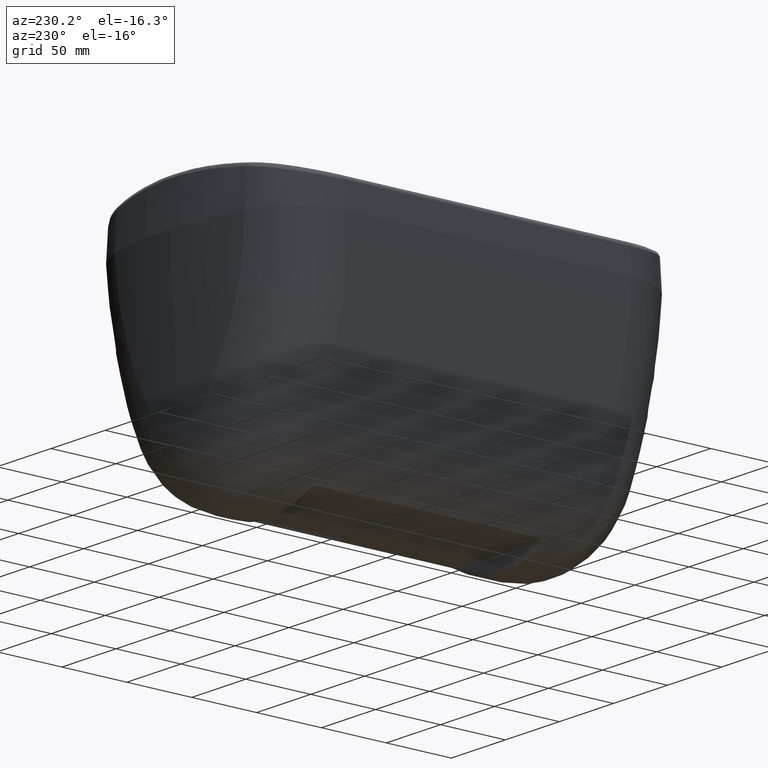
[diagram: clean part render]
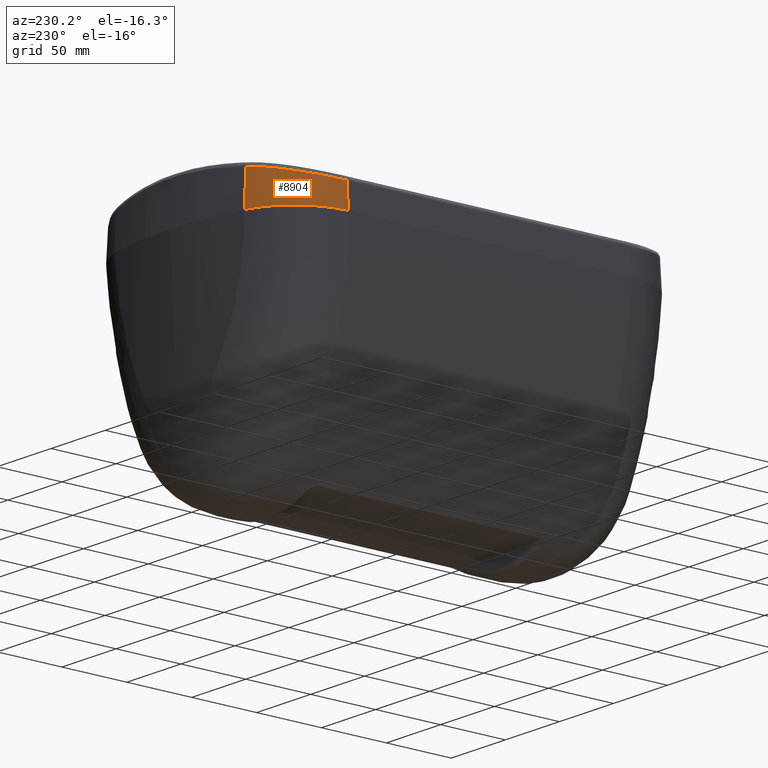
[diagram: same view with one face highlighted and labeled with its STEP entity id]
A machine part, auxiliary view. The second image highlights one B-rep face of the part: STEP entity #8904.
In plain terms, the highlighted face is a freeform B-spline surface patch.
Its self-contained STEP definition (entity closure, byte-faithful):
#150 = CARTESIAN_POINT ( 'NONE',  ( -89.42915485547334242, 188.9463159862830253, 244.0113554168672749 ) ) ;
#223 = CARTESIAN_POINT ( 'NONE',  ( -71.01446128728711926, 206.8780084878387697, 223.0525262965610693 ) ) ;
#228 = CARTESIAN_POINT ( 'NONE',  ( -97.01416530956042550, 160.9795617300341348, 262.8108464797822421 ) ) ;
#330 = CARTESIAN_POINT ( 'NONE',  ( -86.52059050671783780, 192.8427765798996631, 243.9999790924850629 ) ) ;
#404 = CARTESIAN_POINT ( 'NONE',  ( -97.70222834118391120, 172.1564719607957556, 231.9250262467824655 ) ) ;
#570 = CARTESIAN_POINT ( 'NONE',  ( -70.64292112816842462, 206.1385913899607090, 238.7500262084816427 ) ) ;
#751 = CARTESIAN_POINT ( 'NONE',  ( -59.88333336165470655, 210.5895129093997582, 223.0525262965696527 ) ) ;
#943 = CARTESIAN_POINT ( 'NONE',  ( -59.99458637661751226, 210.0829085645397072, 231.9250262467822665 ) ) ;
#1119 = CARTESIAN_POINT ( 'NONE',  ( -97.99999999996133226, 166.5554577454176979, 244.0000000000000568 ) ) ;
#1122 = CARTESIAN_POINT ( 'NONE',  ( -83.40658146635705350, 194.5730029376038317, 266.2452535455641964 ) ) ;
#1232 = CARTESIAN_POINT ( 'NONE',  ( -60.06147851544996286, 209.4141284594159913, 243.9999914605832601 ) ) ;
#1290 = CARTESIAN_POINT ( 'NONE',  ( -59.47479990955961426, 209.8431797915277173, 238.7500262084836891 ) ) ;
#1295 = CARTESIAN_POINT ( 'NONE',  ( -68.38032540615625976, 205.1032653363937754, 269.4207572415613186 ) ) ;
#1469 = CARTESIAN_POINT ( 'NONE',  ( -82.35868806640141315, 194.5828589501576857, 286.0000000000000568 ) ) ;
#1636 = CARTESIAN_POINT ( 'NONE',  ( -59.11785247331602022, 207.3804872477217316, 286.0000000000016485 ) ) ;
#1639 = CARTESIAN_POINT ( 'NONE',  ( -67.38660512634879751, 205.5341502738587280, 269.6081342088526753 ) ) ;
#1811 = CARTESIAN_POINT ( 'NONE',  ( -78.47857477891930955, 198.1246741513796792, 285.9999999999807869 ) ) ;
#1814 = CARTESIAN_POINT ( 'NONE',  ( -63.70857587892282936, 206.9140258078994634, 270.2689837598798590 ) ) ;
#2306 = CARTESIAN_POINT ( 'NONE',  ( -97.71339309995931899, 166.5090961603815742, 244.0184515980935203 ) ) ;
#2482 = CARTESIAN_POINT ( 'NONE',  ( -90.56697473282160615, 187.2164918557105011, 244.0209686430533793 ) ) ;
#3002 = CARTESIAN_POINT ( 'NONE',  ( -88.22743088416726209, 190.6422747847209394, 244.0021593803782594 ) ) ;
#3269 = CARTESIAN_POINT ( 'NONE',  ( -94.47631998579075230, 176.4194827398493999, 263.4922129618790905 ) ) ;
#3442 = CARTESIAN_POINT ( 'NONE',  ( -86.44514015586844380, 191.1106442802418144, 265.5242072069941059 ) ) ;
#3528 = B_SPLINE_CURVE_WITH_KNOTS ( 'NONE', 3,
 ( #21529, #34791, #24715, #2306, #32484, #18536, #29318, #19055, #16002, #29487, #32308, #4979, #7988, #32663, #27353, #5146, #2482, #150, #8356, #3002, #21887, #330, #13368, #34974, #5676, #10679, #18878, #27182, #19226, #26651, #24364, #29659, #24534, #30005, #5329, #16183, #8169, #22064 ),
 .UNSPECIFIED., .F., .F.,
 ( 4, 2, 2, 2, 2, 2, 2, 2, 2, 2, 2, 2, 2, 2, 2, 2, 2, 2, 4 ),
 ( 0.0000000000000000000, 0.004128769760202813909, 0.008257539520405627817, 0.01238630928060844086, 0.01445069416070985345, 0.01651507904081126604, 0.02064384880101402531, 0.02477261856121678110, 0.02890138832141954037, 0.03096577320152088530, 0.03303015808162223371, 0.03715892784182483338, 0.04128769760202743305, 0.04541646736223003272, 0.04954523712243263239, 0.05367400688263523206, 0.05780277664283783173, 0.06193154640304043834, 0.06606031616324303801 ),
 .UNSPECIFIED. ) ;
#3621 = CARTESIAN_POINT ( 'NONE',  ( -94.44824011767880734, 182.9979647497237352, 223.0525262965704769 ) ) ;
#3765 = EDGE_LOOP ( 'NONE', ( #25695, #32787, #9573, #15924 ) ) ;
#3804 = CARTESIAN_POINT ( 'NONE',  ( -84.73229706580642073, 196.9020825838838107, 223.0525262965704769 ) ) ;
#3807 = CARTESIAN_POINT ( 'NONE',  ( -87.95398507497783669, 189.1368366545097786, 265.1571410030913967 ) ) ;
#3977 = CARTESIAN_POINT ( 'NONE',  ( -88.70249862472000757, 186.0620671545817402, 291.0750259148621808 ) ) ;
#3980 = CARTESIAN_POINT ( 'NONE',  ( -67.37760683102514747, 205.5379489965083337, 269.6098202545232425 ) ) ;
#4152 = CARTESIAN_POINT ( 'NONE',  ( -98.02201126729890746, 160.9795617300407571, 243.5800000000000409 ) ) ;
#4327 = CARTESIAN_POINT ( 'NONE',  ( -59.26223124458371672, 207.0707097633227534, 291.0750259148630334 ) ) ;
#4330 = CARTESIAN_POINT ( 'NONE',  ( -74.78315745806652615, 201.6266356909329431, 268.1446367409546383 ) ) ;
#4489 = CARTESIAN_POINT ( 'NONE',  ( -59.46832552430781504, 207.0196541534696735, 291.0750259148621808 ) ) ;
#4654 = CARTESIAN_POINT ( 'NONE',  ( -64.71263846846390777, 205.9944943353456779, 285.9999999999807301 ) ) ;
#4979 = CARTESIAN_POINT ( 'NONE',  ( -94.81326103855992926, 178.5803655937078815, 243.9999825188605485 ) ) ;
#5146 = CARTESIAN_POINT ( 'NONE',  ( -91.27461560871853408, 186.0362987604339366, 244.0257036154915227 ) ) ;
#5329 = CARTESIAN_POINT ( 'NONE',  ( -65.35862471412760044, 207.8087835696290426, 244.0352002128411186 ) ) ;
#5676 = CARTESIAN_POINT ( 'NONE',  ( -82.77157927664372039, 196.8852191544688992, 244.0318979095753207 ) ) ;
#5751 = CARTESIAN_POINT ( 'NONE',  ( -80.27571325282711712, 200.3374553244207164, 231.9250262467880646 ) ) ;
#5755 = CARTESIAN_POINT ( 'NONE',  ( -86.45295651421176331, 191.1008636263105132, 265.5223177922476339 ) ) ;
#5928 = CARTESIAN_POINT ( 'NONE',  ( -84.14037931491121469, 196.3237271607937089, 238.7500262084839449 ) ) ;
#6108 = CARTESIAN_POINT ( 'NONE',  ( -84.39773485877871906, 196.5751860403977105, 231.9250262467824655 ) ) ;
#6112 = CARTESIAN_POINT ( 'NONE',  ( -97.01416528031650444, 163.6719695674896400, 262.8108470374432954 ) ) ;
#6277 = CARTESIAN_POINT ( 'NONE',  ( -98.27513946770761777, 160.9795617300407571, 238.7500262084839449 ) ) ;
#6281 = CARTESIAN_POINT ( 'NONE',  ( -89.70944228369050677, 186.5418760264381035, 264.7223043168219192 ) ) ;
#6637 = CARTESIAN_POINT ( 'NONE',  ( -69.19445297160481800, 203.2559363272196720, 299.9475258650998626 ) ) ;
#6641 = CARTESIAN_POINT ( 'NONE',  ( -59.72153821639221150, 208.0420927345632549, 270.9649366147783098 ) ) ;
#6804 = CARTESIAN_POINT ( 'NONE',  ( -59.32506676943261681, 207.3291541768927289, 286.0000000000008527 ) ) ;
#6808 = CARTESIAN_POINT ( 'NONE',  ( -67.37156124035277571, 205.5404998415718296, 269.6109528982475467 ) ) ;
#6977 = CARTESIAN_POINT ( 'NONE',  ( -69.40445393110661598, 203.6738677303677321, 291.0750259148838381 ) ) ;
#7112 = CARTESIAN_POINT ( 'NONE',  ( -59.83484926281035143, 208.4994213282414535, 261.9766232684597185 ) ) ;
#7166 = CARTESIAN_POINT ( 'NONE',  ( -95.06791441303091972, 160.9795617300407571, 299.9475258650741125 ) ) ;
#7333 = CARTESIAN_POINT ( 'NONE',  ( -65.47364934979771078, 208.0736320898207055, 244.0000000000000568 ) ) ;
#7336 = CARTESIAN_POINT ( 'NONE',  ( -80.93164487073342173, 196.9488202318507035, 266.8115919038920083 ) ) ;
#7988 = CARTESIAN_POINT ( 'NONE',  ( -94.30780767648757035, 179.8677062063135850, 244.0079917276412402 ) ) ;
#8169 = CARTESIAN_POINT ( 'NONE',  ( -61.41460187949685690, 209.0791774375817909, 243.9999999853181691 ) ) ;
#8209 = EDGE_CURVE ( 'Defeatured_0_278+Defeatured_0_262+Defeatured_0_294+Defeatured_0_263', #20749, #30694, #29976, .T. ) ;
#8356 = CARTESIAN_POINT ( 'NONE',  ( -89.03714588645938477, 189.5161748781140716, 244.0078313327315698 ) ) ;
#8428 = CARTESIAN_POINT ( 'NONE',  ( -94.66887721427215752, 175.8433617100724859, 263.4411972145643404 ) ) ;
#8753 = CARTESIAN_POINT ( 'NONE',  ( -97.01416530956042550, 160.9795617300341348, 262.8108464797822421 ) ) ;
#8761 = CARTESIAN_POINT ( 'NONE',  ( -98.00000000000049738, 160.9795617300109711, 244.0000000000437979 ) ) ;
#8776 = CARTESIAN_POINT ( 'NONE',  ( -60.32554593119051134, 210.4799638600437959, 223.0525262965703632 ) ) ;
#8781 = CARTESIAN_POINT ( 'NONE',  ( -94.30603236883109730, 176.9126716948057378, 263.5372736330436965 ) ) ;
#8904 = ADVANCED_FACE ( 'Defeatured_0_262', ( #16790 ), #19647, .T. ) ;
#8955 = CARTESIAN_POINT ( 'NONE',  ( -99.09781057838681306, 160.9795617300407855, 223.0525262965704769 ) ) ;
#9131 = CARTESIAN_POINT ( 'NONE',  ( -94.28386783496678447, 176.9758418981456600, 263.5431354468345262 ) ) ;
#9307 = CARTESIAN_POINT ( 'NONE',  ( -90.81015087141061315, 187.3724041971987049, 244.0000000000000568 ) ) ;
#9312 = CARTESIAN_POINT ( 'NONE',  ( -64.64081554398798346, 206.5967538439550140, 270.1052411986989910 ) ) ;
#9489 = CARTESIAN_POINT ( 'NONE',  ( -59.84508225071781595, 209.4679935743736792, 244.0000000000000568 ) ) ;
#9573 = ORIENTED_EDGE ( 'NONE', *, *, #10341, .T. ) ;
#9651 = CARTESIAN_POINT ( 'NONE',  ( -83.95825176341571705, 196.1457726106187067, 243.5800000000000409 ) ) ;
#9832 = CARTESIAN_POINT ( 'NONE',  ( -95.53290243211051802, 160.9795617300407571, 291.0750259148621808 ) ) ;
#10018 = CARTESIAN_POINT ( 'NONE',  ( -81.83275793823212041, 194.0689792070137116, 299.9475258650741694 ) ) ;
#10021 = CARTESIAN_POINT ( 'NONE',  ( -67.43160543217967984, 205.5151278790275171, 269.5996997136898017 ) ) ;
#10341 = EDGE_CURVE ( 'Defeatured_0_262+Defeatured_0_261+Defeatured_0_277+Defeatured_0_220', #13110, #24046, #14277, .T. ) ;
#10679 = CARTESIAN_POINT ( 'NONE',  ( -80.74166524880835993, 198.7383459474959295, 244.0323425895179525 ) ) ;
#11111 = CARTESIAN_POINT ( 'NONE',  ( -59.66222707688680771, 210.6442874340768299, 223.0525262965693400 ) ) ;
#11115 = CARTESIAN_POINT ( 'NONE',  ( -86.49499629178806970, 191.0481755984198173, 265.5121555364484038 ) ) ;
#11291 = CARTESIAN_POINT ( 'NONE',  ( -86.50898969090255264, 191.0306030600221163, 265.5087726183738255 ) ) ;
#11453 = CARTESIAN_POINT ( 'NONE',  ( -65.56877523508491379, 208.3335230117236847, 238.7500262084863323 ) ) ;
#11643 = CARTESIAN_POINT ( 'NONE',  ( -59.91008386138281594, 209.7353471643987461, 238.7500262084838596 ) ) ;
#11800 = CARTESIAN_POINT ( 'NONE',  ( -97.08286249570883797, 160.9795617300407571, 261.5000260808223516 ) ) ;
#11830 = CARTESIAN_POINT ( 'NONE',  ( -80.04888984147291353, 200.0581721297547517, 238.7500262084863323 ) ) ;
#12005 = CARTESIAN_POINT ( 'NONE',  ( -90.78345619065261474, 181.2646799938977153, 299.9475258650741125 ) ) ;
#12008 = CARTESIAN_POINT ( 'NONE',  ( -75.54060727753692106, 201.1326543988789410, 267.9861828958228784 ) ) ;
#12181 = CARTESIAN_POINT ( 'NONE',  ( -64.45991896963030854, 205.3040460589757288, 299.9475258650483624 ) ) ;
#12186 = CARTESIAN_POINT ( 'NONE',  ( -67.62078440018861158, 205.4346513423243437, 269.5641886995127265 ) ) ;
#12354 = CARTESIAN_POINT ( 'NONE',  ( -93.46990919742461301, 182.5352564143907159, 243.5800000000000409 ) ) ;
#12357 = CARTESIAN_POINT ( 'NONE',  ( -81.35839143620415825, 196.5626190365362334, 266.7152010155212452 ) ) ;
#12517 = CARTESIAN_POINT ( 'NONE',  ( -91.44818951400171159, 181.5790701896066821, 286.0000000000000568 ) ) ;
#12520 = CARTESIAN_POINT ( 'NONE',  ( -66.99077264245343599, 205.7011169545046982, 269.6822884830265252 ) ) ;
#12687 = CARTESIAN_POINT ( 'NONE',  ( -97.08146531688952052, 172.0153246216167418, 244.0000000000000568 ) ) ;
#12690 = CARTESIAN_POINT ( 'NONE',  ( -79.00025755399518346, 198.6131132368467433, 267.2432217167353770 ) ) ;
#12822 = CARTESIAN_POINT ( 'NONE',  ( -59.94813374493688940, 208.9566533966550992, 252.9883050894948155 ) ) ;
#13110 = VERTEX_POINT ( 'NONE', #8761 ) ;
#13368 = CARTESIAN_POINT ( 'NONE',  ( -85.62226997791259464, 193.8954975284959517, 244.0097505686196939 ) ) ;
#13965 = CARTESIAN_POINT ( 'NONE',  ( -86.46697755296119681, 191.0833055081681380, 265.5189285204904195 ) ) ;
#14141 = CARTESIAN_POINT ( 'NONE',  ( -86.47398473763368543, 191.0745244949312109, 265.5172346788221489 ) ) ;
#14277 = LINE ( 'NONE', #11800, #31536 ) ;
#14309 = CARTESIAN_POINT ( 'NONE',  ( -98.27513946766892161, 166.5856587596036888, 238.7500262084743667 ) ) ;
#14487 = CARTESIAN_POINT ( 'NONE',  ( -91.74801525184420825, 187.9554787725047902, 223.0525262965704769 ) ) ;
#14671 = CARTESIAN_POINT ( 'NONE',  ( -80.57058368758761446, 200.7005234774848077, 223.0525262965801687 ) ) ;
#14674 = CARTESIAN_POINT ( 'NONE',  ( -75.98066758297190404, 200.8336582064416120, 267.8932172483183649 ) ) ;
#14838 = CARTESIAN_POINT ( 'NONE',  ( -59.05613696485971786, 207.1217653731757196, 291.0750259148638861 ) ) ;
#14841 = CARTESIAN_POINT ( 'NONE',  ( -67.40010342418659661, 205.5284494056601545, 269.6056047274292951 ) ) ;
#15006 = CARTESIAN_POINT ( 'NONE',  ( -95.53290243207180765, 166.2846538172627504, 291.0750259149489239 ) ) ;
#15012 = CARTESIAN_POINT ( 'NONE',  ( -64.13618359217724674, 206.7710415085183797, 270.1941104158327107 ) ) ;
#15191 = CARTESIAN_POINT ( 'NONE',  ( -70.52860169888921860, 205.9110796700186938, 243.5800000000000693 ) ) ;
#15195 = CARTESIAN_POINT ( 'NONE',  ( -75.01261103729022750, 201.4788686138670073, 268.0967800087840942 ) ) ;
#15349 = CARTESIAN_POINT ( 'NONE',  ( -88.30525732552990803, 185.8151004218087792, 299.9475258650741125 ) ) ;
#15352 = CARTESIAN_POINT ( 'NONE',  ( -80.95645288180587329, 196.9265895750252184, 266.8060007777840497 ) ) ;
#15924 = ORIENTED_EDGE ( 'NONE', *, *, #32269, .T. ) ;
#16002 = CARTESIAN_POINT ( 'NONE',  ( -96.10672172859042917, 174.6144195047222070, 244.0066818195157907 ) ) ;
#16183 = CARTESIAN_POINT ( 'NONE',  ( -62.74448668145520003, 208.6906877307085892, 244.0140243368853135 ) ) ;
#16600 = CARTESIAN_POINT ( 'NONE',  ( -70.80446032778522181, 206.4600770846907096, 231.9250262467770654 ) ) ;
#16605 = CARTESIAN_POINT ( 'NONE',  ( -85.64344567122790863, 192.1131806563557234, 265.7179961207764336 ) ) ;
#16790 = FACE_OUTER_BOUND ( 'NONE', #3765, .T. ) ;
#16970 = CARTESIAN_POINT ( 'NONE',  ( -65.69243950260771214, 208.6713828949297067, 231.9250262467879509 ) ) ;
#17157 = CARTESIAN_POINT ( 'NONE',  ( -88.55478146670425588, 188.2754281488424510, 265.0089423554299515 ) ) ;
#17512 = CARTESIAN_POINT ( 'NONE',  ( -59.35651416688841664, 206.5683094091337466, 299.9475258650741125 ) ) ;
#17677 = CARTESIAN_POINT ( 'NONE',  ( -95.79887327007361364, 166.3138484257946743, 286.0000000000774776 ) ) ;
#17680 = CARTESIAN_POINT ( 'NONE',  ( -82.18773061436336036, 195.7840445037476229, 266.5263350352471434 ) ) ;
#17856 = CARTESIAN_POINT ( 'NONE',  ( -65.48125945861112029, 208.0944234673657434, 243.5800000000000693 ) ) ;
#17859 = CARTESIAN_POINT ( 'NONE',  ( -82.92946304929922974, 195.0597595118541676, 266.3559408637083834 ) ) ;
#18039 = CARTESIAN_POINT ( 'NONE',  ( -95.06791441299230883, 166.2336138487787025, 299.9475258651772265 ) ) ;
#18043 = CARTESIAN_POINT ( 'NONE',  ( -81.01424488800324752, 196.8746929032964772, 266.7929697301277088 ) ) ;
#18207 = CARTESIAN_POINT ( 'NONE',  ( -59.85028240553071299, 209.4893819683487095, 243.5800000000000693 ) ) ;
#18210 = CARTESIAN_POINT ( 'NONE',  ( -67.49463333288434796, 205.4884067322252292, 269.5878781245334039 ) ) ;
#18536 = CARTESIAN_POINT ( 'NONE',  ( -97.08706235820082497, 170.5901832535006122, 244.0223425276736293 ) ) ;
#18878 = CARTESIAN_POINT ( 'NONE',  ( -79.68793909807334330, 199.6229754196963597, 244.0265550739048876 ) ) ;
#19055 = CARTESIAN_POINT ( 'NONE',  ( -96.29148157194427426, 173.9471452806052696, 244.0097193113675758 ) ) ;
#19226 = CARTESIAN_POINT ( 'NONE',  ( -76.36936098440374110, 202.1090392193293610, 244.0000185796787946 ) ) ;
#19295 = CARTESIAN_POINT ( 'NONE',  ( -91.35077395265400924, 187.7085120397327103, 231.9250262467824655 ) ) ;
#19299 = CARTESIAN_POINT ( 'NONE',  ( -86.55091909523888205, 190.9778754749841596, 265.4986333946744708 ) ) ;
#19470 = CARTESIAN_POINT ( 'NONE',  ( -93.70010375387741419, 182.6441285125877130, 238.7500262084839449 ) ) ;
#19474 = CARTESIAN_POINT ( 'NONE',  ( -96.79274282111755667, 166.3614157376439380, 262.8720185556711613 ) ) ;
#19647 = B_SPLINE_SURFACE_WITH_KNOTS ( 'NONE', 1, 3, ( 
 ( #8955, #22668, #30072, #3621, #14487, #3804, #14671, #223, #32738, #8776, #25307, #751, #11111 ),
 ( #21960, #19840, #404, #30619, #19295, #6108, #5751, #16600, #16970, #24953, #943, #27427, #22133 ),
 ( #6277, #14309, #32909, #19470, #30248, #5928, #11830, #570, #11453, #25130, #11643, #22493, #1290 ),
 ( #4152, #20888, #23353, #12354, #34313, #9651, #20362, #15191, #17856, #33801, #18207, #28489, #33623 ),
 ( #28665, #1119, #12687, #23529, #9307, #25831, #26171, #31671, #7333, #23018, #9489, #26003, #23187 ),
 ( #34125, #17677, #20525, #12517, #20192, #1469, #1811, #29003, #4654, #31149, #6804, #1636, #33958 ),
 ( #9832, #15006, #31314, #20705, #3977, #28832, #25650, #6977, #22838, #4489, #4327, #14838, #31495 ),
 ( #7166, #18039, #25485, #12005, #15349, #10018, #30979, #6637, #12181, #17512, #28323, #24215, #31833 ) ),
 .UNSPECIFIED., .F., .F., .F.,
 ( 2, 1, 1, 1, 1, 1, 1, 2 ),
 ( 4, 2, 2, 2, 3, 4 ),
 ( 0.0000000000000000000, 0.1153846153846160016, 0.2041420118343199863, 0.2669545980703479926, 0.2724165917286719973, 0.8186159575610819639, 0.8846153846153850253, 1.000000000000000000 ),
 ( 0.0000000000000000000, 0.2475247524752479944, 0.4950495049504949896, 0.7425742574257430118, 0.9900990099009899792, 1.000000000000000000 ),
 .UNSPECIFIED. ) ;
#19810 = DIRECTION ( 'NONE',  ( 0.05233595624295436788, -4.281650294191459591E-16, 0.9986295347545732781 ) ) ;
#19840 = CARTESIAN_POINT ( 'NONE',  ( -98.63282255926851860, 166.6249202738217434, 231.9250262467602397 ) ) ;
#19844 = CARTESIAN_POINT ( 'NONE',  ( -95.03432245414383317, 174.6888310809372058, 263.3441836502962019 ) ) ;
#20015 = CARTESIAN_POINT ( 'NONE',  ( -90.41664220670993757, 185.3718706230205271, 264.5442246333698222 ) ) ;
#20192 = CARTESIAN_POINT ( 'NONE',  ( -88.92971867534340902, 186.2033308994077174, 286.0000000000000568 ) ) ;
#20362 = CARTESIAN_POINT ( 'NONE',  ( -79.88836952817031545, 199.8605266325807008, 243.5800000000000409 ) ) ;
#20365 = CARTESIAN_POINT ( 'NONE',  ( -80.90566573412459661, 196.9720774250660895, 266.8174456811969435 ) ) ;
#20525 = CARTESIAN_POINT ( 'NONE',  ( -94.92228488691790744, 171.5243762877577467, 286.0000000000000568 ) ) ;
#20528 = CARTESIAN_POINT ( 'NONE',  ( -64.44392949316151942, 206.6656904091895228, 270.1400012956443675 ) ) ;
#20705 = CARTESIAN_POINT ( 'NONE',  ( -91.20631587454020917, 181.4646743887997502, 291.0750259148621808 ) ) ;
#20709 = CARTESIAN_POINT ( 'NONE',  ( -79.98597883225562555, 197.7944873656658444, 267.0246233696497029 ) ) ;
#20749 = VERTEX_POINT ( 'NONE', #1232 ) ;
#20888 = CARTESIAN_POINT ( 'NONE',  ( -98.02201126726021130, 166.5578738386137445, 243.5799999999992451 ) ) ;
#20892 = CARTESIAN_POINT ( 'NONE',  ( -61.94523860109800495, 207.4905278706172282, 270.5765746014267279 ) ) ;
#21529 = CARTESIAN_POINT ( 'NONE',  ( -98.00000000000049738, 160.9795617300109711, 244.0000000000437979 ) ) ;
#21750 = B_SPLINE_CURVE_WITH_KNOTS ( 'NONE', 3,
 ( #228, #6112, #19474, #22305, #33087, #30252, #19844, #8428, #3269, #27967, #22672, #8781, #33451, #9131, #27618, #30624, #20015, #6281, #17157, #3807, #24610, #30076, #21964, #19299, #11291, #11115, #14141, #13965, #5755, #3442, #16605, #27431, #1122, #17859, #17680, #31674, #12357, #26006, #18043, #15352, #7336, #25488, #20365, #20709, #12690, #31151, #28668, #14674, #12008, #15195, #4330, #26174, #22842, #31316, #28492, #28836, #23534, #28326, #1295, #33626, #12186, #18210, #10021, #14841, #1639, #3980, #6808, #12520, #25653, #23357, #31499, #9312, #20528, #15012, #30982, #23021, #1814, #25834, #34128, #20892, #29007, #6641 ),
 .UNSPECIFIED., .F., .F.,
 ( 4, 2, 2, 1, 1, 1, 1, 1, 2, 2, 2, 2, 1, 1, 1, 1, 2, 2, 2, 2, 2, 2, 1, 1, 1, 1, 1, 2, 2, 2, 2, 1, 1, 2, 2, 2, 2, 1, 1, 1, 1, 1, 1, 2, 2, 2, 2, 2, 1, 1, 2, 2, 4 ),
 ( 0.0000000000000000000, 0.1250000000000459910, 0.1875000000000683620, 0.2187500000000789646, 0.2343750000000836553, 0.2421875000000859868, 0.2460937500000873746, 0.2480468750000874856, 0.2490234375000881240, 0.2500000000000887623, 0.3750000000002148282, 0.4375000000002776668, 0.4687500000003090861, 0.4843750000003244072, 0.4921875000003317902, 0.4960937500003356759, 0.4980468750003376188, 0.4990234375003384515, 0.4995117187503383405, 0.5000000000003382850, 0.5625000000002364775, 0.5937500000001856293, 0.6093750000001598721, 0.6171875000001471046, 0.6210937500001408873, 0.6230468750001374456, 0.6240234375001358913, 0.6245117187501348921, 0.6250000000001337819, 0.6875000000000188738, 0.7187499999999616973, 0.7343749999999329425, 0.7421874999999187317, 0.7460937499999124034, 0.7499999999999059641, 0.8124999999998019362, 0.8437499999997495337, 0.8593749999997228883, 0.8671874999997098987, 0.8710937499997033484, 0.8730468749997001288, 0.8740234374996989075, 0.8745117187496984634, 0.8747558593746981304, 0.8749999999996977973, 0.9062499999997740696, 0.9218749999998120392, 0.9296874999998304689, 0.9335937499998396838, 0.9355468749998442357, 0.9365234374998464562, 0.9374999999998485656, 1.000000000000000000 ),
 .UNSPECIFIED. ) ;
#21828 = CARTESIAN_POINT ( 'NONE',  ( -59.72153821639221150, 208.0420927345632549, 270.9649366147783098 ) ) ;
#21887 = CARTESIAN_POINT ( 'NONE',  ( -87.80884037410804410, 191.1996295579150456, 244.0000105107019124 ) ) ;
#21960 = CARTESIAN_POINT ( 'NONE',  ( -98.63282255930721476, 160.9795617300407571, 231.9250262467824371 ) ) ;
#21964 = CARTESIAN_POINT ( 'NONE',  ( -86.63458404142957647, 190.8723688972334287, 265.4783930693724301 ) ) ;
#22064 = CARTESIAN_POINT ( 'NONE',  ( -60.06147851544996286, 209.4141284594159913, 243.9999914605832601 ) ) ;
#22133 = CARTESIAN_POINT ( 'NONE',  ( -59.55628998231062354, 210.1914874622007403, 231.9250262467817549 ) ) ;
#22305 = CARTESIAN_POINT ( 'NONE',  ( -96.11338822530088066, 170.3718978259305459, 263.0555322738809991 ) ) ;
#22493 = CARTESIAN_POINT ( 'NONE',  ( -59.69244188547121155, 209.7892634779627201, 238.7500262084837743 ) ) ;
#22668 = CARTESIAN_POINT ( 'NONE',  ( -99.09781057834811691, 166.6759602423057345, 223.0525262965320508 ) ) ;
#22672 = CARTESIAN_POINT ( 'NONE',  ( -94.32758827967701620, 176.8510559533563935, 263.5315724446315357 ) ) ;
#22838 = CARTESIAN_POINT ( 'NONE',  ( -64.62068251741001745, 205.7432639071436995, 291.0750259148405235 ) ) ;
#22842 = CARTESIAN_POINT ( 'NONE',  ( -74.55050821684163509, 201.7752442800745882, 268.1930628771692113 ) ) ;
#23018 = CARTESIAN_POINT ( 'NONE',  ( -60.06156560068242101, 209.4143642865067250, 244.0000000000000568 ) ) ;
#23021 = CARTESIAN_POINT ( 'NONE',  ( -63.79058976169182671, 206.8869744058767992, 270.2546565838322294 ) ) ;
#23187 = CARTESIAN_POINT ( 'NONE',  ( -59.41211555078861295, 209.5752521501087529, 244.0000000000000568 ) ) ;
#23353 = CARTESIAN_POINT ( 'NONE',  ( -97.10305712118930899, 172.0202341049547101, 243.5800000000000409 ) ) ;
#23357 = CARTESIAN_POINT ( 'NONE',  ( -65.55187478093694153, 206.2663927240456587, 269.9432545625931539 ) ) ;
#23529 = CARTESIAN_POINT ( 'NONE',  ( -93.44989217085611699, 182.5257892240467186, 244.0000000000000568 ) ) ;
#23534 = CARTESIAN_POINT ( 'NONE',  ( -69.69438363719811491, 204.4919648836832380, 269.1687437500606848 ) ) ;
#24046 = VERTEX_POINT ( 'NONE', #8753 ) ;
#24215 = CARTESIAN_POINT ( 'NONE',  ( -58.94824178266901527, 206.6694504771467393, 299.9475258650761589 ) ) ;
#24364 = CARTESIAN_POINT ( 'NONE',  ( -72.83651990327088299, 204.3248998626652337, 244.0124109762579110 ) ) ;
#24534 = CARTESIAN_POINT ( 'NONE',  ( -69.16590075810236726, 206.2239555026527285, 244.0415015127776996 ) ) ;
#24582 = EDGE_CURVE ( 'Defeatured_0_277+Defeatured_0_262+Defeatured_0_275+Defeatured_0_294', #13110, #20749, #3528, .T. ) ;
#24610 = CARTESIAN_POINT ( 'NONE',  ( -87.21077521509661779, 190.1313365357169971, 265.3385787749884344 ) ) ;
#24715 = CARTESIAN_POINT ( 'NONE',  ( -97.94226223702956702, 163.7580702816694327, 244.0072177469296832 ) ) ;
#24953 = CARTESIAN_POINT ( 'NONE',  ( -60.21373457377101346, 210.0286191157077553, 231.9250262467823518 ) ) ;
#25130 = CARTESIAN_POINT ( 'NONE',  ( -60.12772583729451270, 209.6814308508336921, 238.7500262084839449 ) ) ;
#25307 = CARTESIAN_POINT ( 'NONE',  ( -60.10443964642260539, 210.5347383847218055, 223.0525262965700790 ) ) ;
#25485 = CARTESIAN_POINT ( 'NONE',  ( -94.20525572276582693, 171.3613402262117518, 299.9475258650741125 ) ) ;
#25488 = CARTESIAN_POINT ( 'NONE',  ( -80.91509729925523686, 196.9636382675356003, 266.8153207416079908 ) ) ;
#25650 = CARTESIAN_POINT ( 'NONE',  ( -78.30991035442411885, 197.9170009706526798, 291.0750259148405235 ) ) ;
#25653 = CARTESIAN_POINT ( 'NONE',  ( -66.49127069010461355, 205.9067557998452287, 269.7740734763243040 ) ) ;
#25695 = ORIENTED_EDGE ( 'NONE', *, *, #8209, .F. ) ;
#25831 = CARTESIAN_POINT ( 'NONE',  ( -83.94241449908891184, 196.1302982179407479, 244.0000000000000568 ) ) ;
#25834 = CARTESIAN_POINT ( 'NONE',  ( -63.65363758107160663, 206.9320920263433834, 270.2785762308857898 ) ) ;
#25952 = CARTESIAN_POINT ( 'NONE',  ( -59.72153821639221150, 208.0420927345632549, 270.9649366147783098 ) ) ;
#26003 = CARTESIAN_POINT ( 'NONE',  ( -59.62859890075321090, 209.5216228622417418, 244.0000000000000568 ) ) ;
#26006 = CARTESIAN_POINT ( 'NONE',  ( -81.12945604849107895, 196.7707996744242394, 266.7669672878623146 ) ) ;
#26171 = CARTESIAN_POINT ( 'NONE',  ( -79.87441116431631372, 199.8433399743507266, 244.0000000000000568 ) ) ;
#26174 = CARTESIAN_POINT ( 'NONE',  ( -74.62947933598637462, 201.7250058255320369, 268.1766430000623131 ) ) ;
#26651 = CARTESIAN_POINT ( 'NONE',  ( -74.02958190318450704, 203.6218012035525931, 243.9999814673165304 ) ) ;
#27182 = CARTESIAN_POINT ( 'NONE',  ( -77.50248631136581423, 201.3078667130834845, 244.0104444210529948 ) ) ;
#27353 = CARTESIAN_POINT ( 'NONE',  ( -92.58895756020294243, 183.6224203361381910, 244.0256110348580876 ) ) ;
#27427 = CARTESIAN_POINT ( 'NONE',  ( -59.77543817946411764, 210.1371980133707211, 231.9250262467819539 ) ) ;
#27431 = CARTESIAN_POINT ( 'NONE',  ( -84.78835353319782087, 193.1040429640231650, 265.9219179797760830 ) ) ;
#27618 = CARTESIAN_POINT ( 'NONE',  ( -93.42262607920901019, 179.4219793479910265, 263.7709372966871229 ) ) ;
#27967 = CARTESIAN_POINT ( 'NONE',  ( -94.37757677504330900, 176.7072481533863595, 263.5183480768312734 ) ) ;
#28323 = CARTESIAN_POINT ( 'NONE',  ( -59.15237797477871595, 206.6188799431407119, 299.9475258650751925 ) ) ;
#28326 = CARTESIAN_POINT ( 'NONE',  ( -68.81728450088785110, 204.9035837523090606, 269.3373165137881529 ) ) ;
#28489 = CARTESIAN_POINT ( 'NONE',  ( -59.63370636502761357, 209.5430342183867083, 243.5800000000000693 ) ) ;
#28492 = CARTESIAN_POINT ( 'NONE',  ( -72.06168219987515045, 203.2763897029291797, 268.7034308370975282 ) ) ;
#28665 = CARTESIAN_POINT ( 'NONE',  ( -98.00000000000001421, 160.9795617300407571, 244.0000000000000568 ) ) ;
#28668 = CARTESIAN_POINT ( 'NONE',  ( -76.84455693226578887, 200.2332033818595107, 267.7097284571651130 ) ) ;
#28832 = CARTESIAN_POINT ( 'NONE',  ( -82.16732014525990735, 194.3958757504987034, 291.0750259148621808 ) ) ;
#28836 = CARTESIAN_POINT ( 'NONE',  ( -70.28335836370813183, 204.2012138991009067, 269.0541068300008760 ) ) ;
#29003 = CARTESIAN_POINT ( 'NONE',  ( -69.52457343717571803, 203.9129224177186757, 286.0000000000193836 ) ) ;
#29007 = CARTESIAN_POINT ( 'NONE',  ( -60.64002118625389670, 207.8239629044203696, 270.8021536823634960 ) ) ;
#29125 = CARTESIAN_POINT ( 'NONE',  ( -60.06147851544996286, 209.4141284594159913, 243.9999914605832601 ) ) ;
#29318 = CARTESIAN_POINT ( 'NONE',  ( -96.80300625866823339, 171.9384565009231665, 244.0180877576814282 ) ) ;
#29487 = CARTESIAN_POINT ( 'NONE',  ( -95.70843077385002573, 175.9443474397770331, 244.0018257118796896 ) ) ;
#29659 = CARTESIAN_POINT ( 'NONE',  ( -70.40467932481904256, 205.6259769990329573, 244.0332088105444939 ) ) ;
#29976 = B_SPLINE_CURVE_WITH_KNOTS ( 'NONE', 3,
 ( #29125, #12822, #7112, #25952 ),
 .UNSPECIFIED., .F., .F.,
 ( 4, 4 ),
 ( 0.0000000000000000000, 1.000000000000000000 ),
 .UNSPECIFIED. ) ;
#30005 = CARTESIAN_POINT ( 'NONE',  ( -66.64287214613565880, 207.3153557842107944, 244.0425608587894999 ) ) ;
#30072 = CARTESIAN_POINT ( 'NONE',  ( -98.15835520445571660, 172.2601847957417363, 223.0525262965704769 ) ) ;
#30076 = CARTESIAN_POINT ( 'NONE',  ( -86.82844759986646466, 190.6258292084457082, 265.4314324983433835 ) ) ;
#30248 = CARTESIAN_POINT ( 'NONE',  ( -91.04520372250770777, 187.5185376299077120, 238.7500262084839449 ) ) ;
#30252 = CARTESIAN_POINT ( 'NONE',  ( -95.31400610819090957, 173.6955573079420958, 263.2696313329704481 ) ) ;
#30619 = CARTESIAN_POINT ( 'NONE',  ( -94.02538043379111343, 182.7979703548207056, 231.9250262467824655 ) ) ;
#30624 = CARTESIAN_POINT ( 'NONE',  ( -92.36155870567702664, 181.8285128829865016, 264.0490226098725657 ) ) ;
#30694 = VERTEX_POINT ( 'NONE', #21828 ) ;
#30979 = CARTESIAN_POINT ( 'NONE',  ( -78.01503991966373519, 197.5539328175877074, 299.9475258650484193 ) ) ;
#30982 = CARTESIAN_POINT ( 'NONE',  ( -63.97920619706950873, 206.8242030966073912, 270.2216572196190896 ) ) ;
#31149 = CARTESIAN_POINT ( 'NONE',  ( -59.53228106554921339, 207.2778211060637545, 286.0000000000001137 ) ) ;
#31151 = CARTESIAN_POINT ( 'NONE',  ( -77.39884421770003087, 199.8296203816950936, 267.5906592682030123 ) ) ;
#31314 = CARTESIAN_POINT ( 'NONE',  ( -94.66138258603771760, 171.4650530611576755, 291.0750259148621808 ) ) ;
#31316 = CARTESIAN_POINT ( 'NONE',  ( -73.26244282427168741, 202.5897859110817194, 268.4606265315294991 ) ) ;
#31495 = CARTESIAN_POINT ( 'NONE',  ( -58.85004268513561243, 207.1728209830287426, 291.0750259148647956 ) ) ;
#31499 = CARTESIAN_POINT ( 'NONE',  ( -65.20701335742582216, 206.3947105452197377, 270.0048988574033046 ) ) ;
#31536 = VECTOR ( 'NONE', #19810, 1000.000000000000227 ) ;
#31671 = CARTESIAN_POINT ( 'NONE',  ( -70.51866082501091171, 205.8912959348476761, 244.0000000000000568 ) ) ;
#31674 = CARTESIAN_POINT ( 'NONE',  ( -81.81035018587127183, 196.1447238117117990, 266.6126229195970723 ) ) ;
#31833 = CARTESIAN_POINT ( 'NONE',  ( -58.74410559055931458, 206.7200210111527099, 299.9475258650772389 ) ) ;
#32269 = EDGE_CURVE ( 'Defeatured_0_262+Defeatured_0_220+Defeatured_0_261+Defeatured_0_278', #24046, #30694, #21750, .T. ) ;
#32308 = CARTESIAN_POINT ( 'NONE',  ( -95.49435686452203242, 176.6085048961640211, 244.0000087877826047 ) ) ;
#32484 = CARTESIAN_POINT ( 'NONE',  ( -97.54225542496318724, 167.8755030259538898, 244.0225365445813281 ) ) ;
#32663 = CARTESIAN_POINT ( 'NONE',  ( -93.19565788886140467, 182.3887346114658214, 244.0207923506358441 ) ) ;
#32738 = CARTESIAN_POINT ( 'NONE',  ( -65.85320305038742106, 209.1106007430977343, 223.0525262965800550 ) ) ;
#32787 = ORIENTED_EDGE ( 'NONE', *, *, #24582, .F. ) ;
#32909 = CARTESIAN_POINT ( 'NONE',  ( -97.35136152328252024, 172.0766928569917411, 238.7500262084839449 ) ) ;
#33087 = CARTESIAN_POINT ( 'NONE',  ( -95.82907523432264441, 171.7047596200996509, 263.1319962534288948 ) ) ;
#33451 = CARTESIAN_POINT ( 'NONE',  ( -94.29163235947270039, 176.9537452483181710, 263.5410818924768250 ) ) ;
#33623 = CARTESIAN_POINT ( 'NONE',  ( -59.41713032452451415, 209.5966864684247071, 243.5800000000000693 ) ) ;
#33626 = CARTESIAN_POINT ( 'NONE',  ( -67.87346541179176995, 205.3258823900659138, 269.5166248626384231 ) ) ;
#33801 = CARTESIAN_POINT ( 'NONE',  ( -60.06685844603381241, 209.4357297183107107, 243.5800000000000693 ) ) ;
#33958 = CARTESIAN_POINT ( 'NONE',  ( -58.91063817719941653, 207.4318203185507343, 286.0000000000023874 ) ) ;
#34125 = CARTESIAN_POINT ( 'NONE',  ( -95.79887327011230980, 160.9795617300407571, 286.0000000000000568 ) ) ;
#34128 = CARTESIAN_POINT ( 'NONE',  ( -63.62413461808137782, 206.9417630052123229, 270.2837248515865554 ) ) ;
#34313 = CARTESIAN_POINT ( 'NONE',  ( -90.82895519337132839, 187.3840949301767012, 243.5800000000000409 ) ) ;
#34791 = CARTESIAN_POINT ( 'NONE',  ( -97.99999999999462830, 162.3734522829402920, 243.9999999999181171 ) ) ;
#34974 = CARTESIAN_POINT ( 'NONE',  ( -83.74776527863366482, 195.9167198064235436, 244.0257171247256451 ) ) ;